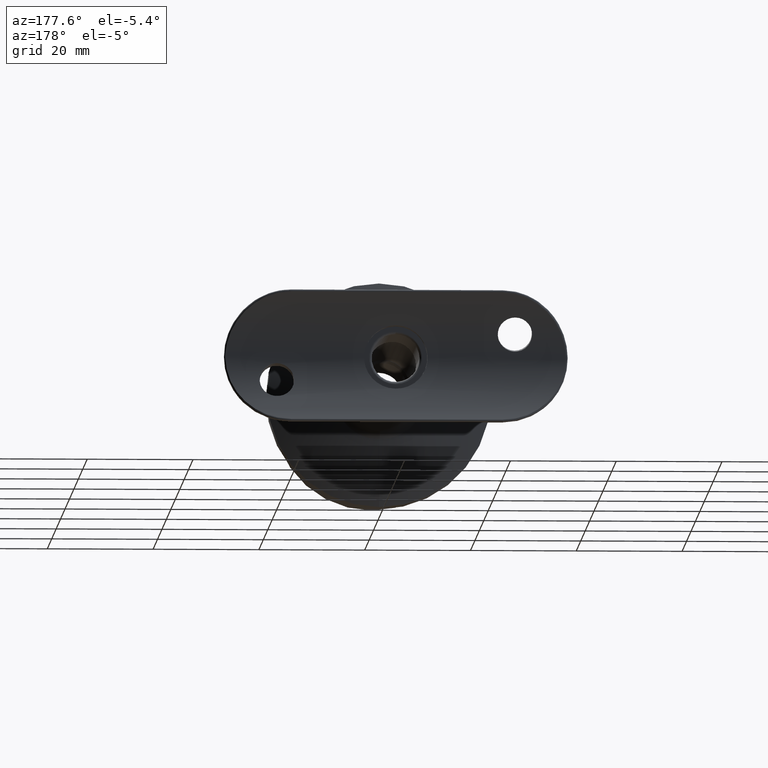
[diagram: clean part render]
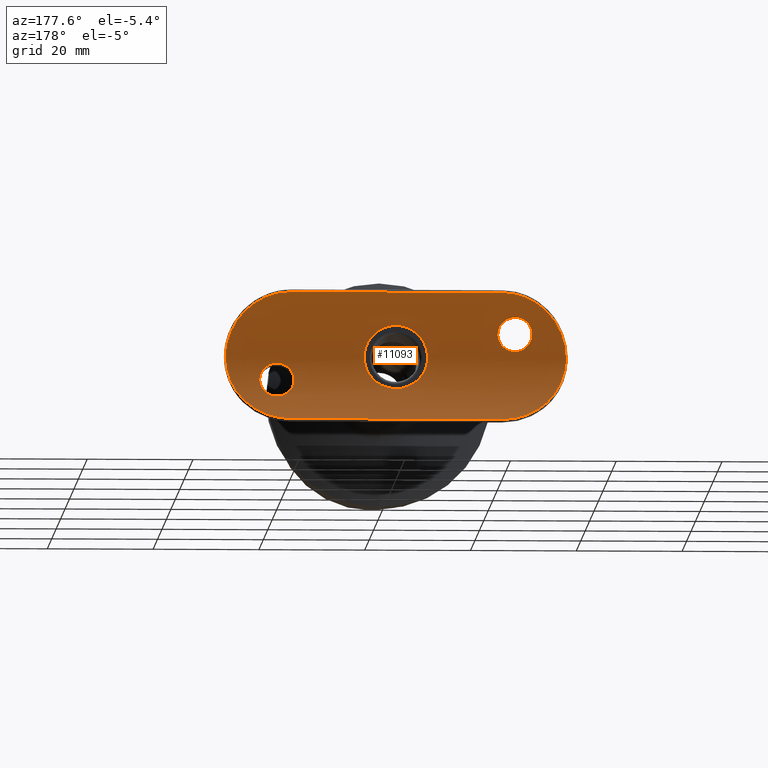
[diagram: same view with one face highlighted and labeled with its STEP entity id]
A machine part, auxiliary view. The second image highlights one B-rep face of the part: STEP entity #11093.
In plain terms, the highlighted cylindrical surface (partial cylindrical patch) has radius 21.2 mm, axis along (-1, -0, -0).
Its self-contained STEP definition (entity closure, byte-faithful):
#40 = CARTESIAN_POINT ( 'NONE',  ( 7.127994499414929100, 1.233879685996251300, 20.87220422761221500 ) ) ;
#125 = CARTESIAN_POINT ( 'NONE',  ( 1.509310193262133300, 0.05363434662304542700, 23.94222196971237800 ) ) ;
#206 = CARTESIAN_POINT ( 'NONE',  ( 1.984331292254789100, 0.09253451680279919900, 24.64870731527175400 ) ) ;
#207 = CARTESIAN_POINT ( 'NONE',  ( -7.080432487514293000, 1.214430617508553700, -29.87089346863396200 ) ) ;
#285 = CARTESIAN_POINT ( 'NONE',  ( 1.609843772107467400, 0.06087662982595950400, 24.12876417025586700 ) ) ;
#305 = CARTESIAN_POINT ( 'NONE',  ( -11.71391088352524100, 3.529878747132654500, 22.80623066708916400 ) ) ;
#368 = CARTESIAN_POINT ( 'NONE',  ( 7.534682888633041000, 1.384133786921571500, 22.28900412894134300 ) ) ;
#392 = CARTESIAN_POINT ( 'NONE',  ( -11.61600354134003200, 3.465070800575818400, 23.19760793233637800 ) ) ;
#488 = CARTESIAN_POINT ( 'NONE',  ( -10.43606157613780600, 2.740200655476106500, 26.11849907747605200 ) ) ;
#563 = EDGE_CURVE ( 'NONE', #17124, #15136, #24469, .T. ) ;
#598 = CARTESIAN_POINT ( 'NONE',  ( -4.510955263027507400, 0.4850877477243168400, 3.961035543833133100 ) ) ;
#774 = CARTESIAN_POINT ( 'NONE',  ( -0.7842338684864933500, 0.01097978293367333900, -5.961545238840421300 ) ) ;
#799 = CARTESIAN_POINT ( 'NONE',  ( -8.274046424628076900, 1.679055176212963700, -28.86455705834219300 ) ) ;
#860 = CARTESIAN_POINT ( 'NONE',  ( -1.556618580580950000, 0.05368734000376707000, -5.807924154963831000 ) ) ;
#934 = CARTESIAN_POINT ( 'NONE',  ( 4.107255792072580300, 0.4011930159944922000, -4.378212937087822000 ) ) ;
#974 = CARTESIAN_POINT ( 'NONE',  ( 11.61784690027768400, 3.466280070094822600, 23.19072169907142100 ) ) ;
#1016 = CARTESIAN_POINT ( 'NONE',  ( -5.999999999999999100, 0.8667759565778726500, -1.355252715606880500E-016 ) ) ;
#1041 = CARTESIAN_POINT ( 'NONE',  ( -10.43442061100086000, 2.739173544592790900, -26.12205622643981300 ) ) ;
#1087 = VERTEX_POINT ( 'NONE', #19088 ) ;
#1100 = CARTESIAN_POINT ( 'NONE',  ( 5.951139941781344000, 0.8524117425383898100, 0.7893478687381478800 ) ) ;
#1188 = AXIS2_PLACEMENT_3D ( 'NONE', #15202, #24958, #19282 ) ;
#1269 = CYLINDRICAL_SURFACE ( 'NONE', #1188, 21.19999999999999600 ) ;
#1296 = CARTESIAN_POINT ( 'NONE',  ( 11.38287231922419600, 3.314545861363989300, -23.96727539065718900 ) ) ;
#1393 = CARTESIAN_POINT ( 'NONE',  ( 12.02976744186046400, 3.743634533650665600, -20.82054122578303200 ) ) ;
#1417 = CARTESIAN_POINT ( 'NONE',  ( -6.114035651951208000, 0.8893968810086759800, -30.53645584613703100 ) ) ;
#1429 = CARTESIAN_POINT ( 'NONE',  ( -7.375631119682182700, 1.324215587093836400, -23.55274220840532700 ) ) ;
#1506 = CARTESIAN_POINT ( 'NONE',  ( -1.344782042633622600, 0.04253442879549993600, -21.45123961646170200 ) ) ;
#1560 = DIRECTION ( 'NONE',  ( -0.0000000000000000000, -0.0000000000000000000, -1.000000000000000000 ) ) ;
#1592 = CARTESIAN_POINT ( 'NONE',  ( -2.448213938638465600, 0.1410939788471757500, -25.08311263211537700 ) ) ;
#1637 = CARTESIAN_POINT ( 'NONE',  ( 7.400792113818091000, 1.331184955241582000, -29.62604208392132700 ) ) ;
#1759 = CARTESIAN_POINT ( 'NONE',  ( -1.282585556259001400, 0.03879125251423346700, -21.65380521085222700 ) ) ;
#1799 = CARTESIAN_POINT ( 'NONE',  ( 1.622683101061821500, 0.04737506940937227100, -32.11588260039523800 ) ) ;
#1989 = CARTESIAN_POINT ( 'NONE',  ( 4.827111689501504300, 0.5558192116770254200, 19.27153942832345000 ) ) ;
#2068 = CARTESIAN_POINT ( 'NONE',  ( 7.376996995855988900, 1.324721298506894400, 23.54876038353829800 ) ) ;
#2143 = CARTESIAN_POINT ( 'NONE',  ( 2.283931502310279100, 0.1228482309744347900, 24.94799669596734000 ) ) ;
#2163 = FACE_BOUND ( 'NONE', #23335, .T. ) ;
#2225 = CARTESIAN_POINT ( 'NONE',  ( 1.176646166158994200, 0.03267839806691055800, 22.49999999999999300 ) ) ;
#2251 = CARTESIAN_POINT ( 'NONE',  ( -2.802401827358696400, 0.1823121044869605000, 31.87132654264274100 ) ) ;
#2277 = CARTESIAN_POINT ( 'NONE',  ( -5.999999999999997300, 0.8667759565778725400, 0.3985892450475842000 ) ) ;
#2312 = CARTESIAN_POINT ( 'NONE',  ( 3.991128816722803000, 0.3780174194777747300, 25.72915833555955300 ) ) ;
#2366 = CARTESIAN_POINT ( 'NONE',  ( -5.960680350720850600, 0.8550575109591239700, 0.7900868887068153200 ) ) ;
#2443 = CARTESIAN_POINT ( 'NONE',  ( -3.011034336946595100, 0.2122957217345398700, 5.204722612134080600 ) ) ;
#2619 = CARTESIAN_POINT ( 'NONE',  ( -2.124247630394297600, 0.1059139265919449600, 5.614775507649731900 ) ) ;
#2644 = CARTESIAN_POINT ( 'NONE',  ( 1.510062909357876600, 0.05368943641162136900, 21.05646236502593600 ) ) ;
#2686 = CARTESIAN_POINT ( 'NONE',  ( -5.387920780962056200, 0.6954969067967961000, -2.669010410636399200 ) ) ;
#2702 = CARTESIAN_POINT ( 'NONE',  ( -11.38511364547576200, 3.315974266675597800, -23.96066238898039200 ) ) ;
#2733 = EDGE_CURVE ( 'NONE', #8760, #17124, #24769, .T. ) ;
#2777 = CARTESIAN_POINT ( 'NONE',  ( 0.7934040963668902400, 0.01393732966914868400, -5.950597231365542000 ) ) ;
#2864 = CARTESIAN_POINT ( 'NONE',  ( 0.9878383440947938700, 0.02215249593839330900, -5.921367764825416400 ) ) ;
#2899 = CARTESIAN_POINT ( 'NONE',  ( 12.02976744186046300, 3.743634533650662000, 20.00000000000000000 ) ) ;
#2936 = CARTESIAN_POINT ( 'NONE',  ( 5.805055781419408600, 0.8101039740215918400, 1.567503375131522200 ) ) ;
#2999 = CARTESIAN_POINT ( 'NONE',  ( 1.935948924808802700, 0.08539385714369124300, 5.692795006294948800 ) ) ;
#3136 = CARTESIAN_POINT ( 'NONE',  ( 0.8204931685141131400, 7.002139030635524500E-015, 32.20000000000000300 ) ) ;
#3170 = CARTESIAN_POINT ( 'NONE',  ( -5.988852183918644400, 0.8627088399358469100, -19.67998565473462900 ) ) ;
#3211 = CARTESIAN_POINT ( 'NONE',  ( 10.79975789010161300, 2.953660262403441800, -25.43156352375395100 ) ) ;
#3245 = CARTESIAN_POINT ( 'NONE',  ( -5.429579192660488800, 0.7061470902598094800, -19.41702362577031200 ) ) ;
#3342 = FACE_BOUND ( 'NONE', #22400, .T. ) ;
#3497 = CARTESIAN_POINT ( 'NONE',  ( -3.374289314042949500, 0.2693274629204224800, -25.58268909295022600 ) ) ;
#3701 = CARTESIAN_POINT ( 'NONE',  ( 8.817994152601984900, 1.918659452614579900, -28.30772441096939600 ) ) ;
#3781 = EDGE_CURVE ( 'NONE', #25105, #8760, #11359, .T. ) ;
#3792 = CARTESIAN_POINT ( 'NONE',  ( 9.794257249474540600, 2.396505160040826700, -27.09445500278443600 ) ) ;
#3978 = CARTESIAN_POINT ( 'NONE',  ( 1.344789009486436500, 0.04253464788917529100, 23.54880535683502200 ) ) ;
#4071 = CARTESIAN_POINT ( 'NONE',  ( 3.992898388204209900, 0.3783750537486829100, 19.27073055686306100 ) ) ;
#4095 = CARTESIAN_POINT ( 'NONE',  ( -8.817994152601983200, 1.918659452614579900, 28.30772441096938500 ) ) ;
#4149 = CARTESIAN_POINT ( 'NONE',  ( 6.484211982502386300, 1.015396774868772000, 24.95019537137531900 ) ) ;
#4230 = CARTESIAN_POINT ( 'NONE',  ( 7.436420780474348300, 1.347004712227897400, 21.65768556441905400 ) ) ;
#4386 = CARTESIAN_POINT ( 'NONE',  ( -2.665134838478789200, 0.1650615079800803500, 5.389766625641874100 ) ) ;
#4604 = EDGE_CURVE ( 'NONE', #1087, #1087, #24906, .T. ) ;
#4630 = CARTESIAN_POINT ( 'NONE',  ( -2.662907551526741300, 0.1647610518916951300, -5.390943988667639400 ) ) ;
#4720 = CARTESIAN_POINT ( 'NONE',  ( 4.522115018280368700, 0.4859911132788173900, -3.962785689061536900 ) ) ;
#4761 = CARTESIAN_POINT ( 'NONE',  ( 11.25095650159239300, 3.230940361285988200, 24.33641923386397100 ) ) ;
#4793 = CARTESIAN_POINT ( 'NONE',  ( -1.939596555399011300, 0.08577921318726421100, -5.691337181999866600 ) ) ;
#4811 = CARTESIAN_POINT ( 'NONE',  ( -11.25095650159238800, 3.230940361285989900, -24.33641923386397800 ) ) ;
#4865 = CARTESIAN_POINT ( 'NONE',  ( 2.662059043896415100, 0.1670773079210488000, 5.380694415465660200 ) ) ;
#4959 = CARTESIAN_POINT ( 'NONE',  ( 5.691927551581163600, 0.7778033625872024000, -1.937831060823398400 ) ) ;
#4994 = CARTESIAN_POINT ( 'NONE',  ( 7.394071288358098600, 1.328662526101175700, 29.63140986148426800 ) ) ;
#5075 = CARTESIAN_POINT ( 'NONE',  ( 1.624576774105318500, 0.04743476649627772400, 32.11578248457319500 ) ) ;
#5152 = CARTESIAN_POINT ( 'NONE',  ( 10.43606157613780300, 2.740200655476106900, -26.11849907747606300 ) ) ;
#5196 = CARTESIAN_POINT ( 'NONE',  ( -7.376990542205825300, 1.324718664984606300, -21.45119464316498900 ) ) ;
#5295 = CARTESIAN_POINT ( 'NONE',  ( -7.221468260473546500, 1.267686120148492800, -23.94353763497407100 ) ) ;
#5375 = CARTESIAN_POINT ( 'NONE',  ( -6.484904608311516900, 1.015632440359358800, -24.94933692326528900 ) ) ;
#5463 = CARTESIAN_POINT ( 'NONE',  ( -5.805838196121058600, 0.8095355343680584700, -25.42155478179711600 ) ) ;
#5503 = CARTESIAN_POINT ( 'NONE',  ( 9.074971809263104200, 2.038615343442476300, -28.01814610976644100 ) ) ;
#5544 = CARTESIAN_POINT ( 'NONE',  ( -2.984382828221373800, 0.2101848420730711200, -25.41895954981652700 ) ) ;
#5632 = DIRECTION ( 'NONE',  ( 0.0000000000000000000, 0.0000000000000000000, 1.000000000000000000 ) ) ;
#5637 = CARTESIAN_POINT ( 'NONE',  ( -1.847291198034511700, 0.08029874248627286200, -24.48251598743322400 ) ) ;
#5782 = CARTESIAN_POINT ( 'NONE',  ( 6.902571909337035000, 1.154831828757486400, 20.51748401256676100 ) ) ;
#5874 = CARTESIAN_POINT ( 'NONE',  ( 7.534527794585166300, 1.384074815454454700, 22.71350652158185200 ) ) ;
#6032 = CARTESIAN_POINT ( 'NONE',  ( 4.613587575160540400, 0.5070089039278411500, 25.75011993407066100 ) ) ;
#6114 = CARTESIAN_POINT ( 'NONE',  ( 5.806090808079780200, 0.8096045498571041700, 25.42144959760617300 ) ) ;
#6208 = CARTESIAN_POINT ( 'NONE',  ( -0.8204931685141100300, 6.875648777178991400E-015, -32.20000000000000300 ) ) ;
#6286 = CARTESIAN_POINT ( 'NONE',  ( 2.804225558420148100, 0.1855336928425863900, 19.67810498883844900 ) ) ;
#6305 = CARTESIAN_POINT ( 'NONE',  ( -11.38287231922420500, 3.314545861363988000, 23.96727539065718600 ) ) ;
#6311 = ORIENTED_EDGE ( 'NONE', *, *, #2733, .T. ) ;
#6336 = CARTESIAN_POINT ( 'NONE',  ( -1.369747224913455900, 0.04340544364730392800, 5.844901919903465500 ) ) ;
#6587 = CARTESIAN_POINT ( 'NONE',  ( 5.203875861337467200, 0.6473910200413811600, -3.012068843146920900 ) ) ;
#6672 = CARTESIAN_POINT ( 'NONE',  ( 3.957909634121460100, 0.3721679781394394700, 4.513671942983468600 ) ) ;
#6716 = CARTESIAN_POINT ( 'NONE',  ( 11.38511364547576600, 3.315974266675597800, 23.96066238898039200 ) ) ;
#6761 = CARTESIAN_POINT ( 'NONE',  ( -5.689094273853588600, 0.7770094309303257100, -1.946153451610273000 ) ) ;
#6848 = CARTESIAN_POINT ( 'NONE',  ( 5.921531304989131600, 0.8437454292806175800, 0.9871179606022807400 ) ) ;
#6924 = CARTESIAN_POINT ( 'NONE',  ( 3.655430837228714800, 0.3169575780503420300, 4.761943770666031900 ) ) ;
#6962 = CARTESIAN_POINT ( 'NONE',  ( -5.430773281668046500, 0.6938986749228635000, -30.91535897875523300 ) ) ;
#6968 = CARTESIAN_POINT ( 'NONE',  ( 10.43442061100085800, 2.739173544592791400, 26.12205622643980600 ) ) ;
#7084 = CARTESIAN_POINT ( 'NONE',  ( -6.772402815976250600, 1.110270536915142900, -20.35129268472823600 ) ) ;
#7167 = CARTESIAN_POINT ( 'NONE',  ( -7.534605570928739800, 1.384104388382306100, -22.50000000000000400 ) ) ;
#7234 = B_SPLINE_CURVE_WITH_KNOTS ( 'NONE', 3,
 ( #14642, #3136, #5075, #20511, #10974, #8836, #24572, #18726, #22466, #10811, #4994, #12926, #14885, #22391, #24418, #6968, #20592, #4761, #6716, #974, #20343, #8678, #22305, #2899 ),
 .UNSPECIFIED., .F., .F.,
 ( 4, 2, 2, 2, 2, 2, 2, 2, 2, 2, 2, 4 ),
 ( 0.0000000000000000000, 0.002426753191983628000, 0.003640129787975443300, 0.004853506383967259500, 0.007280259575950891900, 0.008493636171942707200, 0.009707012767934526000, 0.01213376595991816500, 0.01456051915190180600, 0.01577389574789362200, 0.01698727234388543900, 0.01941402553586905900 ),
 .UNSPECIFIED. ) ;
#7429 = CARTESIAN_POINT ( 'NONE',  ( -6.771013581971091700, 1.109801976228893800, -24.65035701913465600 ) ) ;
#7469 = CARTESIAN_POINT ( 'NONE',  ( 7.089171254759696300, 1.217493650842941000, -29.86454189495129800 ) ) ;
#7496 = EDGE_CURVE ( 'NONE', #15136, #9156, #7900, .T. ) ;
#7549 = CARTESIAN_POINT ( 'NONE',  ( 9.562906772342122600, 2.277405321706765600, -27.41197638596370100 ) ) ;
#7583 = CARTESIAN_POINT ( 'NONE',  ( -1.981931968861054400, 0.09230927099569605200, -24.64599592552049900 ) ) ;
#7627 = CARTESIAN_POINT ( 'NONE',  ( 2.802401827358696800, 0.1823121044869592300, -31.87132654264275500 ) ) ;
#7746 = CARTESIAN_POINT ( 'NONE',  ( 4.200287168360399700, 0.4191499596854264500, 19.24982116824087400 ) ) ;
#7822 = CARTESIAN_POINT ( 'NONE',  ( 6.774686322687461600, 1.111040657374031200, 20.35400407447950900 ) ) ;
#7900 = B_SPLINE_CURVE_WITH_KNOTS ( 'NONE', 3,
 ( #18069, #13804, #10141, #305, #392, #6305, #13885, #23605, #488, #8257, #9962, #10043, #4095, #17738, #21806, #19693, #23681, #12111, #11943, #10307, #23761, #14050, #2251, #23852, #8015, #19860 ),
 .UNSPECIFIED., .F., .F.,
 ( 4, 2, 2, 2, 2, 2, 2, 2, 2, 2, 2, 2, 4 ),
 ( 0.0000000000000000000, 0.002425929769446981200, 0.003638894654170475800, 0.004851859538893971100, 0.007277789308340960200, 0.008490754193064459900, 0.009703719077787959600, 0.01091668396251145900, 0.01212964884723495700, 0.01455557861668195500, 0.01576854350140544800, 0.01698150838612894100, 0.01940743815557592300 ),
 .UNSPECIFIED. ) ;
#7903 = CARTESIAN_POINT ( 'NONE',  ( 1.198006057370047100, 0.03383518986288739500, 22.92644304022615700 ) ) ;
#7988 = CARTESIAN_POINT ( 'NONE',  ( 3.583409306156300800, 0.3040080234167552600, 19.35312228219539300 ) ) ;
#8015 = CARTESIAN_POINT ( 'NONE',  ( -0.8200414072213397800, 8.389014309606592100E-015, 32.20000000000000300 ) ) ;
#8071 = CARTESIAN_POINT ( 'NONE',  ( 2.447134524565475200, 0.1409569346389706600, 25.08241413027236200 ) ) ;
#8101 = ORIENTED_EDGE ( 'NONE', *, *, #23498, .T. ) ;
#8145 = CARTESIAN_POINT ( 'NONE',  ( 1.850713517846503300, 0.08059479270479263900, 20.51298000962625100 ) ) ;
#8146 = CARTESIAN_POINT ( 'NONE',  ( -1.624576774105314100, 0.04743476649627682800, -32.11578248457320900 ) ) ;
#8175 = EDGE_LOOP ( 'NONE', ( #12365 ) ) ;
#8202 = CARTESIAN_POINT ( 'NONE',  ( -5.845438576508475300, 0.8217653701374593200, 1.367236165430296500 ) ) ;
#8257 = CARTESIAN_POINT ( 'NONE',  ( -9.794257249474540600, 2.396505160040824000, 27.09445500278442900 ) ) ;
#8279 = ORIENTED_EDGE ( 'NONE', *, *, #15185, .T. ) ;
#8534 = CARTESIAN_POINT ( 'NONE',  ( 4.768948702656753200, 0.5421397977739502700, -3.661968182206895700 ) ) ;
#8629 = CARTESIAN_POINT ( 'NONE',  ( 5.391900104547988600, 0.6965474123946935300, -2.660947525847903600 ) ) ;
#8678 = CARTESIAN_POINT ( 'NONE',  ( 11.94909103056783400, 3.687304159614575900, 21.62256453510086400 ) ) ;
#8716 = CARTESIAN_POINT ( 'NONE',  ( 3.657866959875101000, 0.3173828150087649700, -4.760085766081405500 ) ) ;
#8760 = VERTEX_POINT ( 'NONE', #16543 ) ;
#8785 = CARTESIAN_POINT ( 'NONE',  ( -2.989393111997172200, 0.2108969723139346400, -19.57855040239382700 ) ) ;
#8795 = CARTESIAN_POINT ( 'NONE',  ( -3.965547715450227400, 0.3722937845388512000, -4.519492598268761300 ) ) ;
#8836 = CARTESIAN_POINT ( 'NONE',  ( 3.969338031837761800, 0.3712500365919564900, 31.52399500228028000 ) ) ;
#8875 = CARTESIAN_POINT ( 'NONE',  ( 4.767146937731929800, 0.5417273837753039400, 3.664215921708838100 ) ) ;
#9011 = CARTESIAN_POINT ( 'NONE',  ( -12.02976744186046600, 3.743634533650665600, 20.00000000000000000 ) ) ;
#9038 = CARTESIAN_POINT ( 'NONE',  ( -4.617187367026383900, 0.5078118210381296100, -19.25012098036409500 ) ) ;
#9117 = CARTESIAN_POINT ( 'NONE',  ( -7.127390611626510400, 1.233667414887389600, -20.87123582974414000 ) ) ;
#9156 = VERTEX_POINT ( 'NONE', #22214 ) ;
#9292 = CARTESIAN_POINT ( 'NONE',  ( -5.425966066455475600, 0.7051789339499036100, -25.58432829874526600 ) ) ;
#9336 = CARTESIAN_POINT ( 'NONE',  ( 4.337402018451466100, 0.4450851293474600800, -31.38647447209340400 ) ) ;
#9372 = CARTESIAN_POINT ( 'NONE',  ( -1.509188657237277500, 0.05362589624973162400, -21.05804036578229000 ) ) ;
#9457 = CARTESIAN_POINT ( 'NONE',  ( -2.286195354599787100, 0.1230807946082434400, -20.04980462862469500 ) ) ;
#9552 = CARTESIAN_POINT ( 'NONE',  ( -1.611833943805084400, 0.06102961419677030400, -20.86790888969852600 ) ) ;
#9776 = CARTESIAN_POINT ( 'NONE',  ( 5.425637340247469400, 0.7050890088054052600, 25.58446609694119200 ) ) ;
#9864 = CARTESIAN_POINT ( 'NONE',  ( 7.222292773639304100, 1.267983663694953300, 23.94195963421771000 ) ) ;
#9943 = CARTESIAN_POINT ( 'NONE',  ( 6.488716733724943200, 1.016858089237799200, 20.05413706812825200 ) ) ;
#9962 = CARTESIAN_POINT ( 'NONE',  ( -9.562906772342122600, 2.277405321706764200, 27.41197638596368700 ) ) ;
#9997 = CARTESIAN_POINT ( 'NONE',  ( 12.02976744186046300, 3.743634533650662000, 20.00000000000000000 ) ) ;
#10022 = CARTESIAN_POINT ( 'NONE',  ( 6.773644985992650200, 1.110675820383053600, 24.64747166983826400 ) ) ;
#10043 = CARTESIAN_POINT ( 'NONE',  ( -9.074971809263109500, 2.038615343442474100, 28.01814610976642700 ) ) ;
#10079 = CARTESIAN_POINT ( 'NONE',  ( -5.204515888465339300, 0.6475511741113754200, 3.011013073439821900 ) ) ;
#10141 = CARTESIAN_POINT ( 'NONE',  ( -11.94901741465890900, 3.687245906568542300, 21.62412866974750300 ) ) ;
#10174 = CARTESIAN_POINT ( 'NONE',  ( -4.379785055764165800, 0.4568756759931989500, 4.105525896893264600 ) ) ;
#10185 = VERTEX_POINT ( 'NONE', #15192 ) ;
#10258 = CARTESIAN_POINT ( 'NONE',  ( -5.388893713550920100, 0.6957500936224129100, 2.667242644977278100 ) ) ;
#10307 = CARTESIAN_POINT ( 'NONE',  ( -4.337402018451469700, 0.4450851293474609200, 31.38647447209341100 ) ) ;
#10519 = CARTESIAN_POINT ( 'NONE',  ( -0.3974597500873096600, 7.193006485306554200E-005, 5.999745847056054500 ) ) ;
#10596 = CARTESIAN_POINT ( 'NONE',  ( 0.1999779353303289000, 2.053238110026925100E-005, -5.999927452249052000 ) ) ;
#10679 = CARTESIAN_POINT ( 'NONE',  ( 0.7896395871175054800, 0.01119111555729989700, 5.960796601360713400 ) ) ;
#10763 = CARTESIAN_POINT ( 'NONE',  ( -2.800779798076203700, 0.1850815234357736400, -19.68017295269655200 ) ) ;
#10766 = CARTESIAN_POINT ( 'NONE',  ( 5.999914447334081300, 0.8667507113957811900, 0.1989940060684038900 ) ) ;
#10811 = CARTESIAN_POINT ( 'NONE',  ( 7.080432487514293000, 1.214430617508551100, 29.87089346863395200 ) ) ;
#10851 = CARTESIAN_POINT ( 'NONE',  ( 0.3897490360429132200, -7.122894324737788600E-005, 6.000251675647400700 ) ) ;
#10920 = CARTESIAN_POINT ( 'NONE',  ( -5.230858638769727300, 0.6543876772568718600, -19.35445460759423500 ) ) ;
#10974 = CARTESIAN_POINT ( 'NONE',  ( 3.199635054120302700, 0.2392079116840429000, 31.76765545715982200 ) ) ;
#11091 = CARTESIAN_POINT ( 'NONE',  ( -12.02976744186046400, 3.743634533650664700, 32.50000000000000000 ) ) ;
#11093 = ADVANCED_FACE ( 'NONE', ( #14330, #3342, #14944, #2163 ), #1269, .F. ) ;
#11359 = B_SPLINE_CURVE_WITH_KNOTS ( 'NONE', 3,
 ( #16930, #1393, #22630, #12921, #20841, #1296, #14880, #3211, #5152, #3792, #7549, #5503, #3701, #23310, #21345, #1637, #7469, #15318, #17444, #9336, #19149, #23143, #7627, #1799, #15471, #19399 ),
 .UNSPECIFIED., .F., .F.,
 ( 4, 2, 2, 2, 2, 2, 2, 2, 2, 2, 2, 2, 4 ),
 ( 0.0000000000000000000, 0.002425929769446988600, 0.003638894654170487500, 0.004851859538893986800, 0.007277789308340984500, 0.008490754193064479000, 0.009703719077787973500, 0.01091668396251146800, 0.01212964884723495700, 0.01455557861668194300, 0.01576854350140543700, 0.01698150838612892700, 0.01940743815557591600 ),
 .UNSPECIFIED. ) ;
#11361 = CARTESIAN_POINT ( 'NONE',  ( -1.344299231651523000, 0.04250609979521676600, -23.54712532255870600 ) ) ;
#11451 = CARTESIAN_POINT ( 'NONE',  ( -4.194948708585586800, 0.4180716480141963300, -25.74981888678940200 ) ) ;
#11680 = CARTESIAN_POINT ( 'NONE',  ( 7.515289853776195600, 1.376725943116747800, 22.07782879654869000 ) ) ;
#11759 = CARTESIAN_POINT ( 'NONE',  ( 7.435338800419936300, 1.346599326897113700, 23.34619478914778100 ) ) ;
#11832 = CARTESIAN_POINT ( 'NONE',  ( 5.430704809434407900, 0.7064320699857692400, 19.41731090704976400 ) ) ;
#11917 = CARTESIAN_POINT ( 'NONE',  ( 1.176646166158994200, 0.03267839806691056500, 22.71505052642908100 ) ) ;
#11943 = CARTESIAN_POINT ( 'NONE',  ( -5.430176229254986900, 0.6936259580091074200, 30.91590705283388000 ) ) ;
#12014 = CARTESIAN_POINT ( 'NONE',  ( 7.125510274962801200, 1.232997697308994700, 24.13209111030147000 ) ) ;
#12015 = CARTESIAN_POINT ( 'NONE',  ( 1.530778106240381600E-015, 6.938893903907228400E-015, -32.20000000000000300 ) ) ;
#12111 = CARTESIAN_POINT ( 'NONE',  ( -6.117041182257963800, 0.8901638739202449900, 30.53504178652875800 ) ) ;
#12140 = CARTESIAN_POINT ( 'NONE',  ( -3.966981472210571600, 0.3725672868034470300, 4.518240597640135200 ) ) ;
#12216 = EDGE_LOOP ( 'NONE', ( #6311, #16899, #24740, #8101, #8279, #19710 ) ) ;
#12228 = CARTESIAN_POINT ( 'NONE',  ( -1.939990309476922000, 0.08810395496704434600, 5.681128042610279900 ) ) ;
#12259 = CARTESIAN_POINT ( 'NONE',  ( 1.176646166158994200, 0.03267839806691055800, 22.49999999999999300 ) ) ;
#12342 = CARTESIAN_POINT ( 'NONE',  ( 1.346235523970417600, 0.04262799032101150000, 21.44725779159466600 ) ) ;
#12365 = ORIENTED_EDGE ( 'NONE', *, *, #20571, .F. ) ;
#12412 = CARTESIAN_POINT ( 'NONE',  ( -7.990291162705732500, 1.560814926426198600, -29.12853539702011600 ) ) ;
#12421 = CARTESIAN_POINT ( 'NONE',  ( 1.176646166158994200, 0.03267839806691054400, 22.28494947357090800 ) ) ;
#12474 = CARTESIAN_POINT ( 'NONE',  ( 1.940245167145604000, 0.08576590913601757300, -5.691438736089947900 ) ) ;
#12556 = CARTESIAN_POINT ( 'NONE',  ( 3.007612715470312300, 0.2137030165419210000, 5.195449595516763900 ) ) ;
#12566 = ORIENTED_EDGE ( 'NONE', *, *, #15802, .F. ) ;
#12644 = CARTESIAN_POINT ( 'NONE',  ( -6.000000000000000900, 0.8667759565778727600, -0.3985892450475844700 ) ) ;
#12710 = CARTESIAN_POINT ( 'NONE',  ( 5.201465577743283200, 0.6467843572900301400, 3.016110755655897300 ) ) ;
#12921 = CARTESIAN_POINT ( 'NONE',  ( 11.71391088352523400, 3.529878747132647800, -22.80623066708916400 ) ) ;
#12923 = CARTESIAN_POINT ( 'NONE',  ( 1.176646166158994400, 0.03267839806691055800, 22.50000000000000000 ) ) ;
#12926 = CARTESIAN_POINT ( 'NONE',  ( 7.990291162705730700, 1.560814926426199500, 29.12853539702010900 ) ) ;
#13040 = CARTESIAN_POINT ( 'NONE',  ( -3.379464949696374000, 0.2701616408857524000, -19.41553390305880800 ) ) ;
#13126 = CARTESIAN_POINT ( 'NONE',  ( -1.197293035883244100, 0.03379426286332463300, -22.92217120345131300 ) ) ;
#13184 = CARTESIAN_POINT ( 'NONE',  ( 12.02976744186046100, 3.743634533650661100, 32.50000000000000000 ) ) ;
#13218 = CARTESIAN_POINT ( 'NONE',  ( -1.983031669841456300, 0.09239952561136491300, -20.35252833016173200 ) ) ;
#13304 = CARTESIAN_POINT ( 'NONE',  ( -4.821223648648903300, 0.5544410230532260700, -25.72926944313695300 ) ) ;
#13613 = CARTESIAN_POINT ( 'NONE',  ( 4.823881693650337300, 0.5550565889253406000, 25.72894875071584400 ) ) ;
#13694 = CARTESIAN_POINT ( 'NONE',  ( 6.328874018911713000, 0.9659537425201412100, 19.91688736788461300 ) ) ;
#13778 = CARTESIAN_POINT ( 'NONE',  ( 5.230974359147923600, 0.6544380719868747600, 19.35462794771553200 ) ) ;
#13804 = CARTESIAN_POINT ( 'NONE',  ( -12.02976744186046800, 3.743634533650665600, 20.82054122578302800 ) ) ;
#13885 = CARTESIAN_POINT ( 'NONE',  ( -11.24921019784549600, 3.229852782994776700, 24.34093573332405900 ) ) ;
#13946 = CARTESIAN_POINT ( 'NONE',  ( 3.578026237070412600, 0.3030673049348726600, 25.64554539240575800 ) ) ;
#14050 = CARTESIAN_POINT ( 'NONE',  ( -3.191571477401496300, 0.2379745802690517700, 31.76991313577612200 ) ) ;
#14088 = CARTESIAN_POINT ( 'NONE',  ( -5.999999999999999100, 0.8667759565778726500, -1.355252715606880500E-016 ) ) ;
#14111 = VECTOR ( 'NONE', #5632, 1000.000000000000000 ) ;
#14201 = CARTESIAN_POINT ( 'NONE',  ( 1.198009188643540000, 0.03383410142774447000, 22.07246211263115800 ) ) ;
#14251 = CARTESIAN_POINT ( 'NONE',  ( -3.666256703641650000, 0.3167861565036790800, 4.765923523361858600 ) ) ;
#14274 = CARTESIAN_POINT ( 'NONE',  ( -10.80003296590865100, 2.953800561847770300, -25.43145049213535100 ) ) ;
#14330 = FACE_OUTER_BOUND ( 'NONE', #12216, .T. ) ;
#14344 = CARTESIAN_POINT ( 'NONE',  ( -5.203698981399576000, 0.6473385558480014800, -3.012515206503587600 ) ) ;
#14371 = CARTESIAN_POINT ( 'NONE',  ( -9.084480890637937700, 2.035952119956766300, -28.03528842286181100 ) ) ;
#14438 = CARTESIAN_POINT ( 'NONE',  ( 1.560857445958439700, 0.05401038843589373000, 5.806750453888359900 ) ) ;
#14460 = CARTESIAN_POINT ( 'NONE',  ( -12.02976744186046800, 3.743634533650665100, -20.82020734007567200 ) ) ;
#14525 = CARTESIAN_POINT ( 'NONE',  ( 5.990210346896907000, 0.8638795611900419400, 0.3956218705733521300 ) ) ;
#14621 = CARTESIAN_POINT ( 'NONE',  ( -12.02976744186046600, 3.743634533650665600, -20.00000000000000400 ) ) ;
#14642 = CARTESIAN_POINT ( 'NONE',  ( 1.549370552874875800E-015, 6.938893903907228400E-015, 32.20000000000000300 ) ) ;
#14683 = CARTESIAN_POINT ( 'NONE',  ( 5.961915576899625300, 0.8554159503639929800, -0.7832332020948765700 ) ) ;
#14880 = CARTESIAN_POINT ( 'NONE',  ( 11.24921019784549300, 3.229852782994774500, -24.34093573332405600 ) ) ;
#14885 = CARTESIAN_POINT ( 'NONE',  ( 8.274046424628076900, 1.679055176212964400, 28.86455705834218200 ) ) ;
#14944 = FACE_BOUND ( 'NONE', #8175, .T. ) ;
#14970 = VECTOR ( 'NONE', #1560, 1000.000000000000000 ) ;
#15018 = CARTESIAN_POINT ( 'NONE',  ( -1.848340851562285700, 0.08039503847872149500, -20.51630573792486000 ) ) ;
#15040 = CARTESIAN_POINT ( 'NONE',  ( -3.969338031837763600, 0.3712500365919563200, -31.52399500228028000 ) ) ;
#15109 = CARTESIAN_POINT ( 'NONE',  ( -6.899325050146125600, 1.153710301217989200, -24.48701999037374900 ) ) ;
#15136 = VERTEX_POINT ( 'NONE', #9011 ) ;
#15185 = EDGE_CURVE ( 'NONE', #19955, #25105, #24095, .T. ) ;
#15191 = CARTESIAN_POINT ( 'NONE',  ( -1.609205754723189700, 0.06082492584139512900, -24.12779577238777400 ) ) ;
#15192 = CARTESIAN_POINT ( 'NONE',  ( -7.534605570928739800, 1.384104388382306100, -22.50000000000000000 ) ) ;
#15202 = CARTESIAN_POINT ( 'NONE',  ( 0.0000000000000000000, 21.20000000000000300, 32.50000000000000000 ) ) ;
#15318 = CARTESIAN_POINT ( 'NONE',  ( 6.117041182257961100, 0.8901638739202464300, -30.53504178652876200 ) ) ;
#15356 = CARTESIAN_POINT ( 'NONE',  ( -7.125946904276154300, 1.233145026006106500, -24.13160901931686600 ) ) ;
#15471 = CARTESIAN_POINT ( 'NONE',  ( 0.8200414072213413300, 7.174369063243923900E-015, -32.20000000000001000 ) ) ;
#15575 = CARTESIAN_POINT ( 'NONE',  ( 5.988897733279394200, 0.8627369099410747700, 25.31982704730345200 ) ) ;
#15802 = EDGE_CURVE ( 'NONE', #10185, #10185, #24732, .T. ) ;
#15820 = CARTESIAN_POINT ( 'NONE',  ( 4.198260611571678100, 0.4187661903071031000, 25.74987901963591600 ) ) ;
#15910 = CARTESIAN_POINT ( 'NONE',  ( 1.846823868990307600, 0.08026100002750621900, 24.48180188292305100 ) ) ;
#15968 = CARTESIAN_POINT ( 'NONE',  ( -4.878066632430917900, 0.5685434221653026300, 3.498965885800045000 ) ) ;
#16075 = CARTESIAN_POINT ( 'NONE',  ( 2.989651955632943700, 0.2109366700674992200, 19.57844521820288400 ) ) ;
#16194 = CARTESIAN_POINT ( 'NONE',  ( -12.02976744186046600, 3.743634533650665600, -20.00000000000000400 ) ) ;
#16302 = CARTESIAN_POINT ( 'NONE',  ( 3.015902784871265800, 0.2130592085109251900, -5.201538773815625100 ) ) ;
#16381 = CARTESIAN_POINT ( 'NONE',  ( 3.498820536433559200, 0.2900705293353320100, 4.878137923113210500 ) ) ;
#16399 = CARTESIAN_POINT ( 'NONE',  ( -11.94909103056784100, 3.687304159614577200, -21.62256453510086700 ) ) ;
#16463 = CARTESIAN_POINT ( 'NONE',  ( -4.758293063566747500, 0.5405009297459911800, -3.660191764305795700 ) ) ;
#16543 = CARTESIAN_POINT ( 'NONE',  ( 1.530778106240381600E-015, 6.938893903907228400E-015, -32.20000000000000300 ) ) ;
#16569 = VERTEX_POINT ( 'NONE', #12923 ) ;
#16581 = CARTESIAN_POINT ( 'NONE',  ( -7.394071288358099500, 1.328662526101175500, -29.63140986148427200 ) ) ;
#16634 = CARTESIAN_POINT ( 'NONE',  ( -7.222178307879378400, 1.267941950340351500, -21.05777803028761500 ) ) ;
#16643 = CARTESIAN_POINT ( 'NONE',  ( 5.806559744401103500, 0.8105320953811346900, -1.562611765488404600 ) ) ;
#16712 = CARTESIAN_POINT ( 'NONE',  ( -6.903014186903573300, 1.154987429152373200, -20.51819811707695300 ) ) ;
#16892 = CARTESIAN_POINT ( 'NONE',  ( -4.822985695600518600, 0.5548340574535722800, -19.27084166444045000 ) ) ;
#16899 = ORIENTED_EDGE ( 'NONE', *, *, #563, .T. ) ;
#16930 = CARTESIAN_POINT ( 'NONE',  ( 12.02976744186046300, 3.743634533650661600, -20.00000000000000400 ) ) ;
#17053 = CARTESIAN_POINT ( 'NONE',  ( -7.435108791666678500, 1.346512595565525900, -23.34746283907301700 ) ) ;
#17124 = VERTEX_POINT ( 'NONE', #16194 ) ;
#17150 = CARTESIAN_POINT ( 'NONE',  ( -3.986958835414534000, 0.3772392097350529800, -25.72846057167655000 ) ) ;
#17240 = CARTESIAN_POINT ( 'NONE',  ( -7.534605570928738900, 1.384104388382306300, -22.71505052642909600 ) ) ;
#17251 = ORIENTED_EDGE ( 'NONE', *, *, #4604, .F. ) ;
#17444 = CARTESIAN_POINT ( 'NONE',  ( 5.430176229254985100, 0.6936259580091065400, -30.91590705283388000 ) ) ;
#17558 = CARTESIAN_POINT ( 'NONE',  ( 7.377449588078059500, 1.324891795595471100, 21.45287467744128300 ) ) ;
#17633 = CARTESIAN_POINT ( 'NONE',  ( 5.990441486962597900, 0.8631889154575733700, 19.68106559161185500 ) ) ;
#17715 = CARTESIAN_POINT ( 'NONE',  ( 3.375433527830893800, 0.2695249505742620100, 25.58297637422969100 ) ) ;
#17738 = CARTESIAN_POINT ( 'NONE',  ( -8.277802284553542800, 1.680647973935919500, 28.86095438532202100 ) ) ;
#17804 = CARTESIAN_POINT ( 'NONE',  ( 5.229227462301975200, 0.6539857104031806500, 25.64590564005769100 ) ) ;
#17930 = CARTESIAN_POINT ( 'NONE',  ( -4.760172760344621800, 0.5409326857142500200, 3.657769163878172900 ) ) ;
#17961 = CARTESIAN_POINT ( 'NONE',  ( 1.282830956521418000, 0.03880557248840561800, 21.65253716092697500 ) ) ;
#18013 = CARTESIAN_POINT ( 'NONE',  ( -1.563303799001972500, 0.05687349871905737100, 5.796107268626353300 ) ) ;
#18069 = CARTESIAN_POINT ( 'NONE',  ( -12.02976744186046600, 3.743634533650665600, 20.00000000000000000 ) ) ;
#18211 = CARTESIAN_POINT ( 'NONE',  ( 1.611375139099506400, 0.06098661251760900000, 20.86839098068314200 ) ) ;
#18262 = CARTESIAN_POINT ( 'NONE',  ( 1.564390522937071100, 0.05429404609164964500, -5.805718344292514200 ) ) ;
#18349 = CARTESIAN_POINT ( 'NONE',  ( -3.663167832216083700, 0.3162419778577607000, -4.768297944891226200 ) ) ;
#18440 = CARTESIAN_POINT ( 'NONE',  ( -4.876473460912023900, 0.5681653635272104800, -3.501205410230782800 ) ) ;
#18459 = CARTESIAN_POINT ( 'NONE',  ( -11.71492132494384600, 3.530550620802069600, -22.80174323233596200 ) ) ;
#18511 = CARTESIAN_POINT ( 'NONE',  ( -4.378407865575817400, 0.4565848211310324900, -4.106992825656441000 ) ) ;
#18583 = CARTESIAN_POINT ( 'NONE',  ( -4.201875760889285200, 0.4194968562874184500, -19.24988006592933200 ) ) ;
#18588 = CARTESIAN_POINT ( 'NONE',  ( 3.960695604691359500, 0.3726962494417985800, -4.511241239789252500 ) ) ;
#18726 = CARTESIAN_POINT ( 'NONE',  ( 5.430773281668049200, 0.6938986749228636100, 30.91535897875522200 ) ) ;
#18759 = CARTESIAN_POINT ( 'NONE',  ( -7.534605570928739800, 1.384104388382306100, -22.28494947357091100 ) ) ;
#19088 = CARTESIAN_POINT ( 'NONE',  ( -6.000000000000000000, 0.8667759565778726500, 0.0000000000000000000 ) ) ;
#19105 = CARTESIAN_POINT ( 'NONE',  ( -5.985565960702429900, 0.8617484702536094600, -25.32189501116155500 ) ) ;
#19149 = CARTESIAN_POINT ( 'NONE',  ( 3.961749693882379300, 0.3698013078167692900, -31.52668622580569700 ) ) ;
#19184 = CARTESIAN_POINT ( 'NONE',  ( -2.281485689481670900, 0.1225835243221032900, -24.94586293187173000 ) ) ;
#19269 = CARTESIAN_POINT ( 'NONE',  ( -1.198317767727732800, 0.03385212441006405600, -22.07088132477352400 ) ) ;
#19282 = DIRECTION ( 'NONE',  ( -1.000000000000000000, 0.0000000000000000000, 0.0000000000000000000 ) ) ;
#19399 = CARTESIAN_POINT ( 'NONE',  ( 1.530778106240381600E-015, 6.938893903907228400E-015, -32.20000000000000300 ) ) ;
#19421 = CARTESIAN_POINT ( 'NONE',  ( 5.810957579528258400, 0.8109918525141374100, 19.58104045018347600 ) ) ;
#19506 = CARTESIAN_POINT ( 'NONE',  ( 7.223887158229827000, 1.268563953227465100, 21.06161435289827800 ) ) ;
#19672 = CARTESIAN_POINT ( 'NONE',  ( 4.620495436756173500, 0.5085243973840610800, 19.25018111321060100 ) ) ;
#19693 = CARTESIAN_POINT ( 'NONE',  ( -7.400792113818089200, 1.331184955241579800, 29.62604208392131300 ) ) ;
#19710 = ORIENTED_EDGE ( 'NONE', *, *, #3781, .T. ) ;
#19860 = CARTESIAN_POINT ( 'NONE',  ( 1.549370552874875800E-015, 6.938893903907228400E-015, 32.20000000000000300 ) ) ;
#19933 = CARTESIAN_POINT ( 'NONE',  ( 2.285466755647478400, 0.1230143694501805000, 20.05066307673470800 ) ) ;
#19955 = VERTEX_POINT ( 'NONE', #9997 ) ;
#19980 = CARTESIAN_POINT ( 'NONE',  ( -0.7881440351434959600, 0.01109649585257311600, 5.961138535017026300 ) ) ;
#20006 = CARTESIAN_POINT ( 'NONE',  ( 1.985791001470407700, 0.09267151769195261500, 20.34964298086535500 ) ) ;
#20221 = CARTESIAN_POINT ( 'NONE',  ( 4.104486264952993400, 0.4006440544251720400, 4.380825007029514500 ) ) ;
#20306 = CARTESIAN_POINT ( 'NONE',  ( 2.482795350062895900, 0.1450872727631736000, 5.465773555087817000 ) ) ;
#20326 = CARTESIAN_POINT ( 'NONE',  ( -11.61784690027769100, 3.466280070094824400, -23.19072169907143200 ) ) ;
#20343 = CARTESIAN_POINT ( 'NONE',  ( 11.71492132494384500, 3.530550620802067800, 22.80174323233596600 ) ) ;
#20383 = CARTESIAN_POINT ( 'NONE',  ( -5.806149115504993600, 0.8104168921214265400, -1.563240252272103600 ) ) ;
#20462 = CARTESIAN_POINT ( 'NONE',  ( -7.436301153031575200, 1.346960523768577300, -21.65776872578242200 ) ) ;
#20469 = CARTESIAN_POINT ( 'NONE',  ( 5.389994015634826500, 0.6960437267391488300, 2.664835474612385000 ) ) ;
#20511 = CARTESIAN_POINT ( 'NONE',  ( 2.807674963407243300, 0.1829943209551352600, 31.87008604220466900 ) ) ;
#20549 = CARTESIAN_POINT ( 'NONE',  ( 4.520324241424017200, 0.4855912526564714600, 3.964897188831771700 ) ) ;
#20571 = EDGE_CURVE ( 'NONE', #16569, #16569, #20672, .T. ) ;
#20592 = CARTESIAN_POINT ( 'NONE',  ( 10.80003296590864700, 2.953800561847769400, 25.43145049213533700 ) ) ;
#20616 = CARTESIAN_POINT ( 'NONE',  ( -5.807175258894528000, 0.8099275918911579300, -19.57921701735553200 ) ) ;
#20672 = B_SPLINE_CURVE_WITH_KNOTS ( 'NONE', 3,
 ( #2225, #11917, #7903, #21702, #3978, #125, #285, #15910, #206, #2143, #8071, #23660, #21459, #17715, #13946, #2312, #15820, #6032, #13613, #17804, #9776, #6114, #15575, #23336, #4149, #10022, #21538, #12014, #9864, #2068, #11759, #23494, #5874, #368, #11680, #4230, #17558, #19506, #40, #5782, #7822, #9943, #13694, #17633, #19421, #11832, #13778, #1989, #19672, #7746, #4071, #7988, #21617, #16075, #6286, #23989, #19933, #20006, #8145, #18211, #2644, #12342, #17961, #14201, #12421, #12259 ),
 .UNSPECIFIED., .T., .F.,
 ( 4, 2, 2, 2, 2, 2, 2, 2, 2, 2, 2, 2, 2, 2, 2, 2, 2, 2, 2, 2, 2, 2, 2, 2, 2, 2, 2, 2, 2, 2, 2, 2, 4 ),
 ( 0.0000000000000000000, 0.0006359202025225589400, 0.001271840405045117900, 0.001907760607567677000, 0.002543680810090235800, 0.003179601012612794700, 0.003815521215135354100, 0.004451441417657913000, 0.005087361620180471500, 0.005723281822703030900, 0.006359202025225589400, 0.006995122227748148800, 0.007631042430270708200, 0.008266962632793266700, 0.008902882835315826000, 0.009538803037838383700, 0.01017472324036094300, 0.01081064344288350200, 0.01144656364540606200, 0.01208248384792861900, 0.01271840405045117900, 0.01335432425297373800, 0.01399024445549629800, 0.01462616465801885700, 0.01526208486054141600, 0.01589800506306397400, 0.01653392526558653300, 0.01716984546810909600, 0.01780576567063165900, 0.01844168587315421800, 0.01907760607567677800, 0.01971352627819934100, 0.02034944648072190000 ),
 .UNSPECIFIED. ) ;
#20841 = CARTESIAN_POINT ( 'NONE',  ( 11.61600354134002800, 3.465070800575819300, -23.19760793233637800 ) ) ;
#20962 = CARTESIAN_POINT ( 'NONE',  ( -1.281432233226439600, 0.03872150950655992000, -23.34231443558093500 ) ) ;
#20964 = CARTESIAN_POINT ( 'NONE',  ( 12.02976744186046300, 3.743634533650661600, -20.00000000000000400 ) ) ;
#21053 = CARTESIAN_POINT ( 'NONE',  ( -7.534605570928739800, 1.384104388382306100, -22.50000000000000400 ) ) ;
#21221 = CARTESIAN_POINT ( 'NONE',  ( -2.799185661704757700, 0.1848665498313608000, -25.31893440838815200 ) ) ;
#21345 = CARTESIAN_POINT ( 'NONE',  ( 7.994589161116274500, 1.562584708273526900, -29.12460384736232300 ) ) ;
#21459 = CARTESIAN_POINT ( 'NONE',  ( 2.988271023848819500, 0.2107510000127972800, 25.42078298264447200 ) ) ;
#21538 = CARTESIAN_POINT ( 'NONE',  ( 6.901573836015933800, 1.154492866971694300, 24.48369426207514400 ) ) ;
#21617 = CARTESIAN_POINT ( 'NONE',  ( 3.379128067510835700, 0.2701100865986980100, 19.41567170125472300 ) ) ;
#21702 = CARTESIAN_POINT ( 'NONE',  ( 1.281559491399000500, 0.03872979820476152300, 23.34223127421757500 ) ) ;
#21761 = CARTESIAN_POINT ( 'NONE',  ( -5.682557378328161800, 0.7756980387682878000, 1.935861042096271900 ) ) ;
#21806 = CARTESIAN_POINT ( 'NONE',  ( -7.994589161116274500, 1.562584708273525100, 29.12460384736231900 ) ) ;
#21923 = CARTESIAN_POINT ( 'NONE',  ( -5.615243929284033300, 0.7570269888545279000, 2.123116885718336900 ) ) ;
#22052 = CARTESIAN_POINT ( 'NONE',  ( -4.342653968270590200, 0.4462116949780483000, -31.38435726816691200 ) ) ;
#22172 = CARTESIAN_POINT ( 'NONE',  ( 6.000169419885850200, 0.8668259495946837300, -0.3901985286802376300 ) ) ;
#22214 = CARTESIAN_POINT ( 'NONE',  ( 1.549370552874875800E-015, 6.938893903907228400E-015, 32.20000000000000300 ) ) ;
#22264 = CARTESIAN_POINT ( 'NONE',  ( 3.501239423540816600, 0.2904767905301345300, -4.876396344112009700 ) ) ;
#22305 = CARTESIAN_POINT ( 'NONE',  ( 12.02976744186046800, 3.743634533650660700, 20.82020734007567200 ) ) ;
#22352 = CARTESIAN_POINT ( 'NONE',  ( 0.3999026621498741900, 0.002858225880461699900, -5.989922815101410300 ) ) ;
#22391 = CARTESIAN_POINT ( 'NONE',  ( 9.084480890637936000, 2.035952119956766700, 28.03528842286180400 ) ) ;
#22400 = EDGE_LOOP ( 'NONE', ( #17251 ) ) ;
#22429 = CARTESIAN_POINT ( 'NONE',  ( -4.509470939277631100, 0.4847658338018261400, -3.962704692263842700 ) ) ;
#22466 = CARTESIAN_POINT ( 'NONE',  ( 6.114035651951209800, 0.8893968810086737600, 30.53645584613703100 ) ) ;
#22499 = CARTESIAN_POINT ( 'NONE',  ( -6.486374706629956000, 1.016105109098146300, -20.05200330403266000 ) ) ;
#22504 = CARTESIAN_POINT ( 'NONE',  ( -3.007664344769988200, 0.2118103952824856900, -5.206670629820544100 ) ) ;
#22630 = CARTESIAN_POINT ( 'NONE',  ( 11.94901741465890800, 3.687245906568535200, -21.62412866974750300 ) ) ;
#22671 = CARTESIAN_POINT ( 'NONE',  ( -3.579679885571840800, 0.3033635491823145100, -19.35409435994231200 ) ) ;
#22834 = CARTESIAN_POINT ( 'NONE',  ( -4.615179922208733700, 0.5073381369052315500, -25.75017883175912600 ) ) ;
#22926 = CARTESIAN_POINT ( 'NONE',  ( -6.325105506393674300, 0.9647704364358785600, -25.08616426249718100 ) ) ;
#23025 = CARTESIAN_POINT ( 'NONE',  ( -1.507496089420403900, 0.05350752248014827700, -23.93838564710171800 ) ) ;
#23099 = CARTESIAN_POINT ( 'NONE',  ( -3.577900023861241500, 0.3030662750933948400, -25.64537205228447200 ) ) ;
#23143 = CARTESIAN_POINT ( 'NONE',  ( 3.191571477401494900, 0.2379745802690541600, -31.76991313577612900 ) ) ;
#23182 = CARTESIAN_POINT ( 'NONE',  ( -1.176563575458260800, 0.03267380702542553600, -22.71099587105864300 ) ) ;
#23310 = CARTESIAN_POINT ( 'NONE',  ( 8.277802284553542800, 1.680647973935919500, -28.86095438532202800 ) ) ;
#23335 = EDGE_LOOP ( 'NONE', ( #12566 ) ) ;
#23336 = CARTESIAN_POINT ( 'NONE',  ( 6.326753349257219700, 0.9652932289194085000, 25.08477140967278600 ) ) ;
#23399 = CARTESIAN_POINT ( 'NONE',  ( -3.199635054120301800, 0.2392079116840424000, -31.76765545715980800 ) ) ;
#23494 = CARTESIAN_POINT ( 'NONE',  ( 7.514330180243075800, 1.376362006279463300, 22.92911867522645900 ) ) ;
#23498 = EDGE_CURVE ( 'NONE', #9156, #19955, #7234, .T. ) ;
#23605 = CARTESIAN_POINT ( 'NONE',  ( -10.79975789010161300, 2.953660262403443600, 25.43156352375394700 ) ) ;
#23644 = CARTESIAN_POINT ( 'NONE',  ( -2.807674963407240200, 0.1829943209551341500, -31.87008604220470400 ) ) ;
#23660 = CARTESIAN_POINT ( 'NONE',  ( 2.800832826587516900, 0.1850744068040882400, 25.32001434526536300 ) ) ;
#23681 = CARTESIAN_POINT ( 'NONE',  ( -7.089171254759697200, 1.217493650842939500, 29.86454189495129400 ) ) ;
#23761 = CARTESIAN_POINT ( 'NONE',  ( -3.961749693882381100, 0.3698013078167669600, 31.52668622580569000 ) ) ;
#23852 = CARTESIAN_POINT ( 'NONE',  ( -1.622683101061819000, 0.04737506940937329100, 32.11588260039523800 ) ) ;
#23961 = CARTESIAN_POINT ( 'NONE',  ( -5.797576013936588200, 0.8080486141175655700, 1.557924483062338700 ) ) ;
#23989 = CARTESIAN_POINT ( 'NONE',  ( 2.452137940075834500, 0.1415457670798737400, 19.91383573750282600 ) ) ;
#24095 = LINE ( 'NONE', #13184, #14970 ) ;
#24129 = CARTESIAN_POINT ( 'NONE',  ( 2.671900972921424300, 0.1658283323698196100, -5.386833150024099100 ) ) ;
#24217 = CARTESIAN_POINT ( 'NONE',  ( -0.3933899227371526200, -4.072583393608366800E-005, -6.000143897955430500 ) ) ;
#24290 = CARTESIAN_POINT ( 'NONE',  ( -5.960665220070611200, 0.8550513149133922600, -0.7909221023866709300 ) ) ;
#24314 = CARTESIAN_POINT ( 'NONE',  ( -9.571910381192267900, 2.277585287327468200, -27.43149116233650300 ) ) ;
#24375 = CARTESIAN_POINT ( 'NONE',  ( 3.174911366692541500, 0.2384439168274885000, 5.094890828735291400 ) ) ;
#24418 = CARTESIAN_POINT ( 'NONE',  ( 9.571910381192267900, 2.277585287327468200, 27.43149116233649200 ) ) ;
#24455 = CARTESIAN_POINT ( 'NONE',  ( -7.514621829725311600, 1.376473319825309200, -22.07355695977384600 ) ) ;
#24460 = CARTESIAN_POINT ( 'NONE',  ( 5.690670445282177200, 0.7774504963860047200, 1.941559548024176100 ) ) ;
#24469 = LINE ( 'NONE', #11091, #14111 ) ;
#24529 = CARTESIAN_POINT ( 'NONE',  ( -3.990219770070526200, 0.3778562768540014700, -19.27105124928414900 ) ) ;
#24572 = CARTESIAN_POINT ( 'NONE',  ( 4.342653968270591100, 0.4462116949780486300, 31.38435726816691200 ) ) ;
#24695 = CARTESIAN_POINT ( 'NONE',  ( -6.329915853636209500, 0.9662675836627802100, -19.91758586972765200 ) ) ;
#24732 = B_SPLINE_CURVE_WITH_KNOTS ( 'NONE', 3,
 ( #7167, #18759, #24455, #20462, #5196, #16634, #9117, #16712, #7084, #22499, #24695, #3170, #20616, #3245, #10920, #16892, #9038, #18583, #24529, #22671, #13040, #8785, #10763, #24788, #9457, #13218, #15018, #9552, #9372, #1506, #1759, #19269, #24863, #23182, #13126, #20962, #11361, #23025, #15191, #5637, #7583, #19184, #1592, #21221, #5544, #3497, #23099, #17150, #11451, #22834, #13304, #24946, #9292, #5463, #19105, #22926, #5375, #7429, #15109, #15356, #5295, #1429, #17053, #25036, #17240, #21053 ),
 .UNSPECIFIED., .T., .F.,
 ( 4, 2, 2, 2, 2, 2, 2, 2, 2, 2, 2, 2, 2, 2, 2, 2, 2, 2, 2, 2, 2, 2, 2, 2, 2, 2, 2, 2, 2, 2, 2, 2, 4 ),
 ( 0.0000000000000000000, 0.0006359202025225602400, 0.001271840405045120500, 0.001907760607567680700, 0.002543680810090241000, 0.003179601012612800800, 0.003815521215135361500, 0.004451441417657921700, 0.005087361620180481900, 0.005723281822703042200, 0.006359202025225601600, 0.006995122227748161800, 0.007631042430270722900, 0.008266962632793282300, 0.008902882835315843400, 0.009538803037838402800, 0.01017472324036096400, 0.01081064344288352300, 0.01144656364540608400, 0.01208248384792864400, 0.01271840405045120300, 0.01335432425297376400, 0.01399024445549632400, 0.01462616465801888500, 0.01526208486054144100, 0.01589800506306400200, 0.01653392526558655800, 0.01716984546810911400, 0.01780576567063167300, 0.01844168587315423200, 0.01907760607567678800, 0.01971352627819934800, 0.02034944648072190300 ),
 .UNSPECIFIED. ) ;
#24740 = ORIENTED_EDGE ( 'NONE', *, *, #7496, .T. ) ;
#24769 = B_SPLINE_CURVE_WITH_KNOTS ( 'NONE', 3,
 ( #12015, #6208, #8146, #23644, #23399, #15040, #22052, #6962, #1417, #207, #16581, #12412, #799, #14371, #24314, #1041, #14274, #4811, #2702, #20326, #18459, #16399, #14460, #14621 ),
 .UNSPECIFIED., .F., .F.,
 ( 4, 2, 2, 2, 2, 2, 2, 2, 2, 2, 2, 4 ),
 ( 0.0000000000000000000, 0.002426753191983648400, 0.003640129787975470200, 0.004853506383967292500, 0.007280259575950929200, 0.008493636171942747100, 0.009707012767934565900, 0.01213376595991819500, 0.01456051915190182000, 0.01577389574789362900, 0.01698727234388543900, 0.01941402553586906600 ),
 .UNSPECIFIED. ) ;
#24788 = CARTESIAN_POINT ( 'NONE',  ( -2.450419921853160600, 0.1413531237038538600, -19.91522859032720700 ) ) ;
#24863 = CARTESIAN_POINT ( 'NONE',  ( -1.176729246777781200, 0.03268301634190540900, -22.28649347841815500 ) ) ;
#24906 = B_SPLINE_CURVE_WITH_KNOTS ( 'NONE', 3,
 ( #14088, #2277, #2366, #8202, #23961, #21761, #21923, #10258, #10079, #15968, #17930, #598, #10174, #12140, #14251, #2443, #4386, #2619, #12228, #18013, #6336, #19980, #10519, #10851, #10679, #14438, #2999, #20306, #4865, #12556, #24375, #16381, #6924, #6672, #20221, #20549, #8875, #12710, #20469, #24460, #2936, #6848, #1100, #14525, #10766, #22172, #14683, #16643, #4959, #8629, #6587, #8534, #4720, #934, #18588, #8716, #22264, #16302, #24129, #12474, #18262, #2864, #2777, #22352, #10596, #24217, #774, #860, #4793, #4630, #22504, #18349, #8795, #18511, #22429, #16463, #18440, #14344, #2686, #6761, #20383, #24290, #12644, #1016 ),
 .UNSPECIFIED., .T., .F.,
 ( 4, 2, 2, 2, 2, 2, 2, 2, 2, 2, 2, 2, 2, 2, 2, 2, 2, 2, 2, 2, 2, 2, 2, 2, 2, 2, 2, 2, 2, 2, 2, 2, 2, 2, 2, 2, 2, 2, 2, 2, 2, 4 ),
 ( 0.0000000000000000000, 0.001178294353801490600, 0.001767441530702235900, 0.002356588707602981200, 0.003534883061404471700, 0.004124030238305216600, 0.004713177415205963200, 0.005891471769007452000, 0.007069766122808941700, 0.007658913299709686600, 0.008248060476610431400, 0.009426354830411922900, 0.01060464918421341300, 0.01178294353801490400, 0.01237209071491565000, 0.01296123789181639400, 0.01355038506871713900, 0.01413953224561788500, 0.01531782659941937300, 0.01649612095322086300, 0.01767441530702235100, 0.01826356248392309700, 0.01885270966082384200, 0.02003100401462533000, 0.02120929836842682200, 0.02238759272222831300, 0.02356588707602980500, 0.02415503425293054700, 0.02474418142983129300, 0.02592247578363278400, 0.02710077013743427500, 0.02768991731433502100, 0.02827906449123576700, 0.02945735884503725500, 0.03063565319883874600, 0.03181394755264023400, 0.03299224190644172600, 0.03358138908334247500, 0.03417053626024321700, 0.03534883061404471600, 0.03652712496784620700, 0.03770541932164769800 ),
 .UNSPECIFIED. ) ;
#24946 = CARTESIAN_POINT ( 'NONE',  ( -5.225558335780736900, 0.6530575749034760500, -25.64687771780460000 ) ) ;
#24958 = DIRECTION ( 'NONE',  ( -0.0000000000000000000, -0.0000000000000000000, -1.000000000000000000 ) ) ;
#25036 = CARTESIAN_POINT ( 'NONE',  ( -7.514619411871092500, 1.376471051886659000, -22.92753788736884600 ) ) ;
#25105 = VERTEX_POINT ( 'NONE', #20964 ) ;